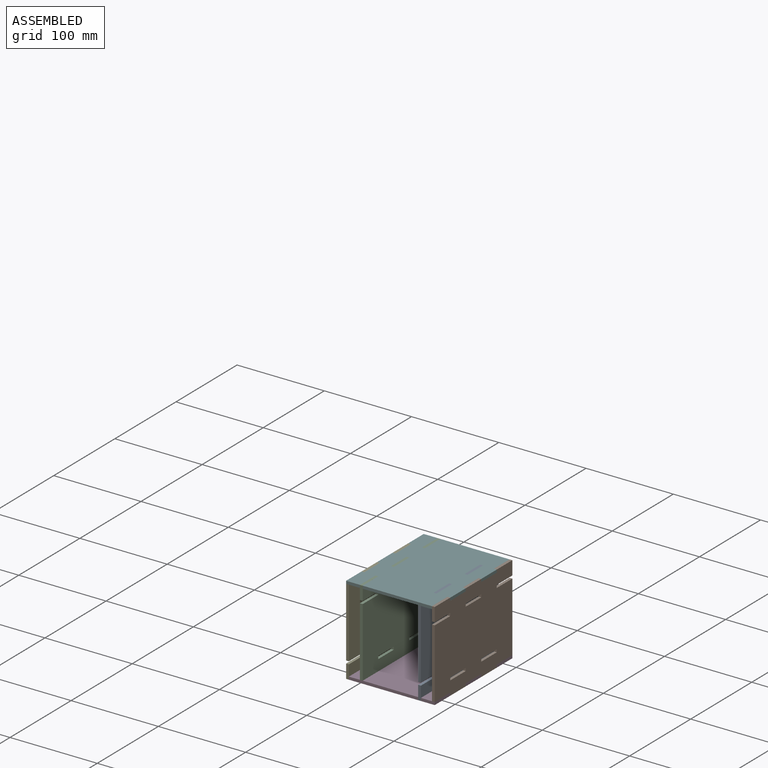
[diagram: assembled view]
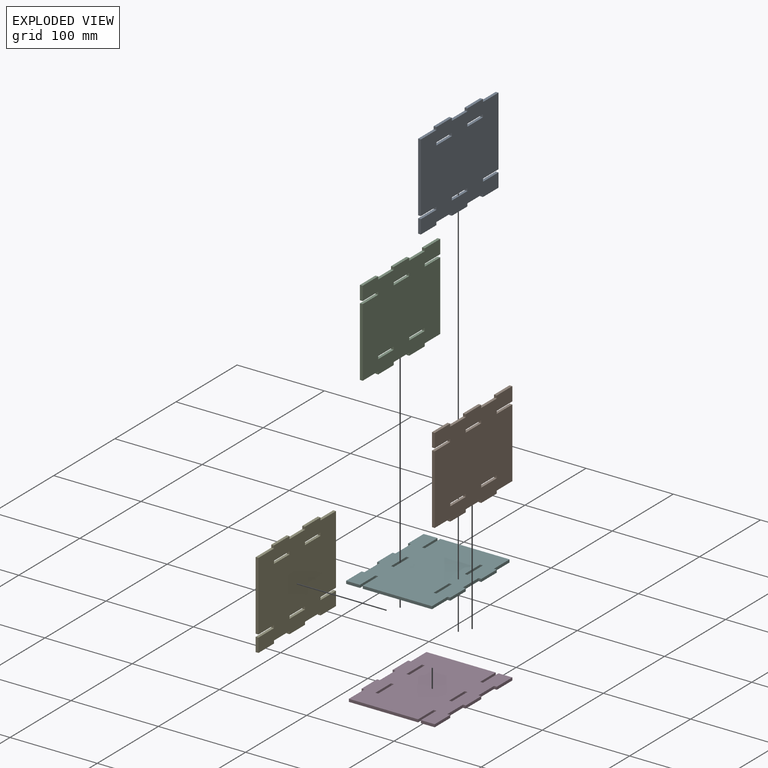
[diagram: exploded view]
GUIDED TOUR — MATED ASSEMBLY (Onshape document b6afd63ae048976123e517c2, AutoMate assembly b6afd63ae048976123e517c2_30f4b4c88ab1d7d391c8418f_69f8c4b8301abefe9bf8a802_default)

This assembly has 6 components, labeled P0..P5 below (a component is one placed occurrence of a part; the same part can appear more than once), held together by 5 mates. A mate is a constraint between two components; its type names the relative motion it leaves free:
  FASTENED — locks the two components together rigidly (no relative motion).
Axis/direction vectors are unit vectors and 'through' points are millimeter coordinates, both in the assembly's world frame.

MATES
  1. FASTENED "Fastened 2": P3 <-> P1, direction (0.000, 0.000, 1.000) through (17.25, 5.61, -39.02) mm
  2. FASTENED "Fastened 3": P5 <-> P1, direction (0.000, 0.000, -1.000) through (17.25, 31.01, 56.23) mm
  3. FASTENED "Fastened 5": P5 <-> P2, direction (0.000, 0.000, 1.000) through (-65.30, -45.19, 59.41) mm
  4. FASTENED "Fastened 1": P4 <-> P3, direction (-1.000, 0.000, 0.000) through (-84.35, -19.79, -39.02) mm
  5. FASTENED "Fastened 4": P3 <-> P0, direction (0.000, 0.000, -1.000) through (1.37, -45.19, -42.19) mm

ASSEMBLY ORDER
  1. P5 — the base component [order verified]
  2. P1 [order verified]
  3. P2 [order verified]
  4. P0 [order verified]
  5. P4 [order verified]
  6. P3 [order verified]
Order-tag legend:
  [order verified] — this step's position reverses a verified removal order: the component was checked to insert without passing through the ones already placed.

Of the 6 components, 6 carry the full construction recipe — the FeatureScript program that regenerates the part's solid from scratch; the rest are supplied as boundary geometry only.
Each toured component is shown spotlighted twice — in the assembled view, then in the exploded view, where a leader line traces a displaced component back to its assembled socket (saturated green if recipe-attached, orange if geometry-only; every other component desaturated gray) — followed by its recipe or geometry summary and the mates that hold it.
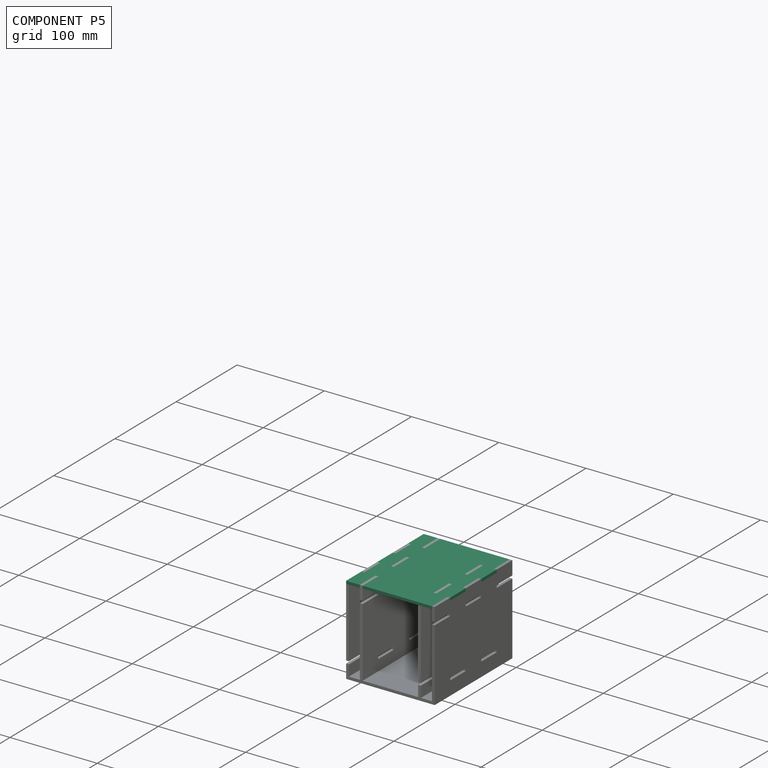
[diagram: component P5 — assembled]
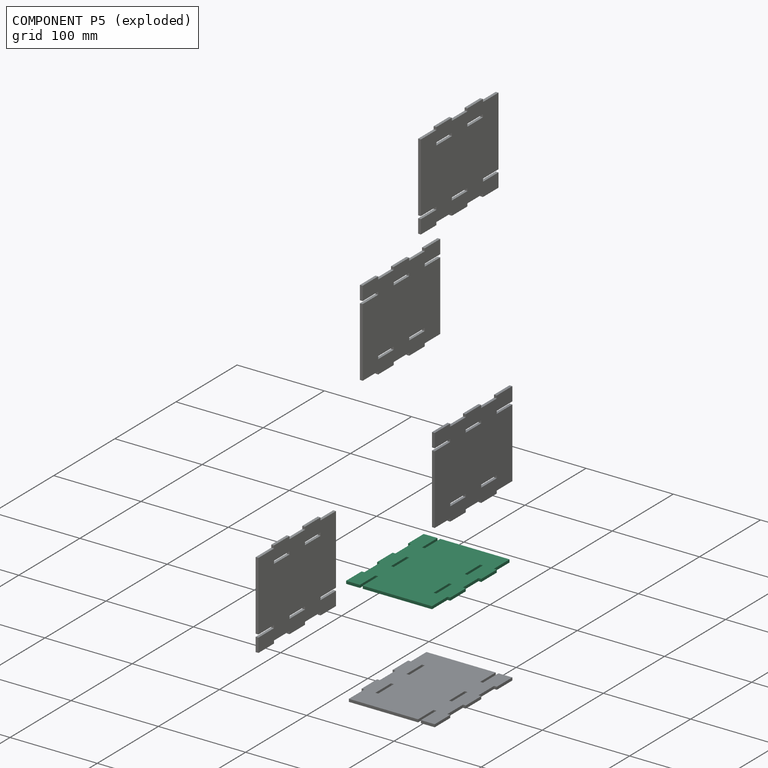
[diagram: component P5 — exploded]
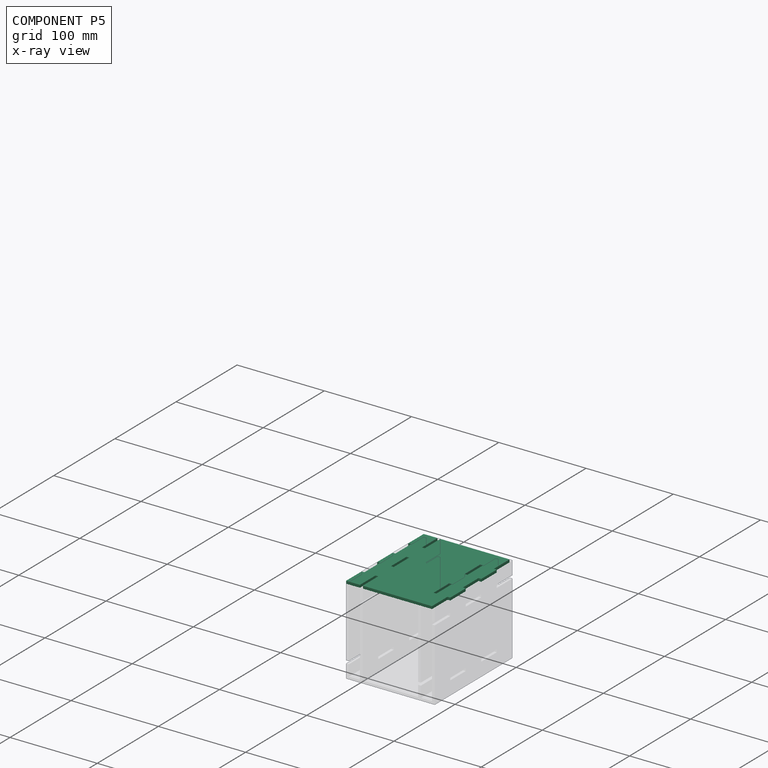
[diagram: component P5 — x-ray view]
COMPONENT P5 — same part as P0 (CADFS 00802393); its construction recipe is shown at P0.
Held by: FASTENED mate "Fastened 3" to P1; FASTENED mate "Fastened 5" to P2.
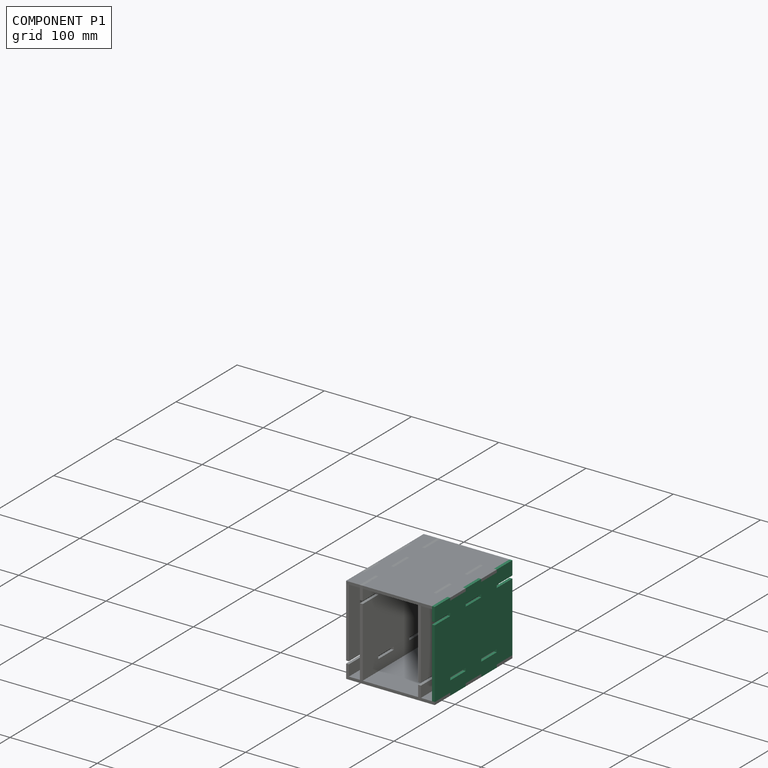
[diagram: component P1 — assembled]
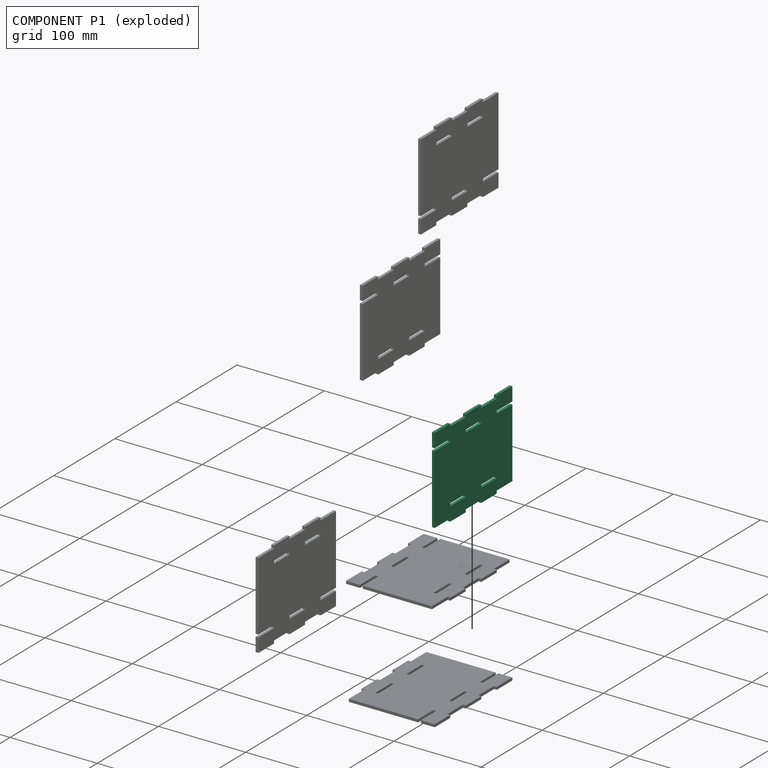
[diagram: component P1 — exploded]
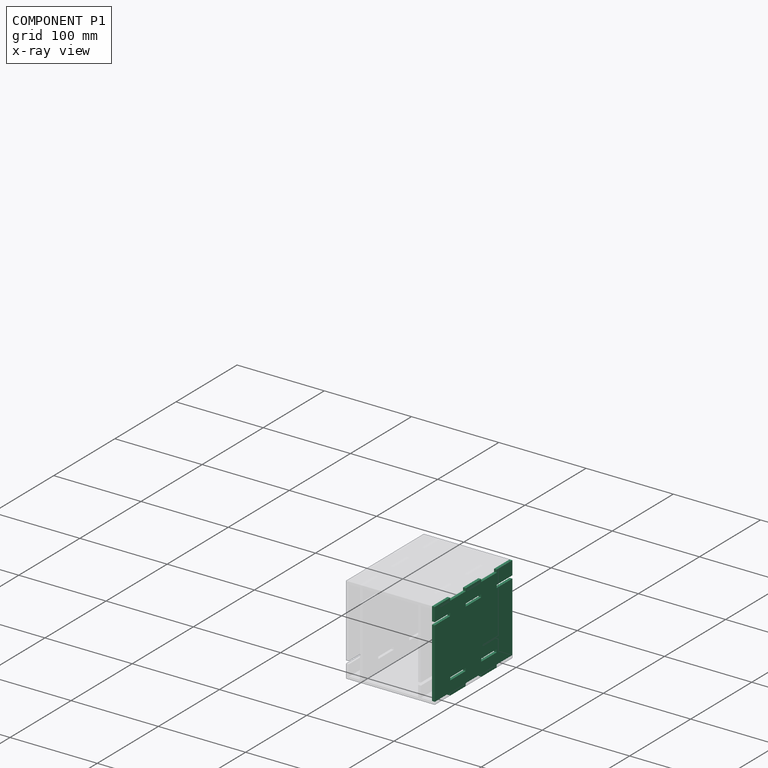
[diagram: component P1 — x-ray view]
COMPONENT P1 — same part as P0 (CADFS 00802393); its construction recipe is shown at P0.
Held by: FASTENED mate "Fastened 2" to P3; FASTENED mate "Fastened 3" to P5.
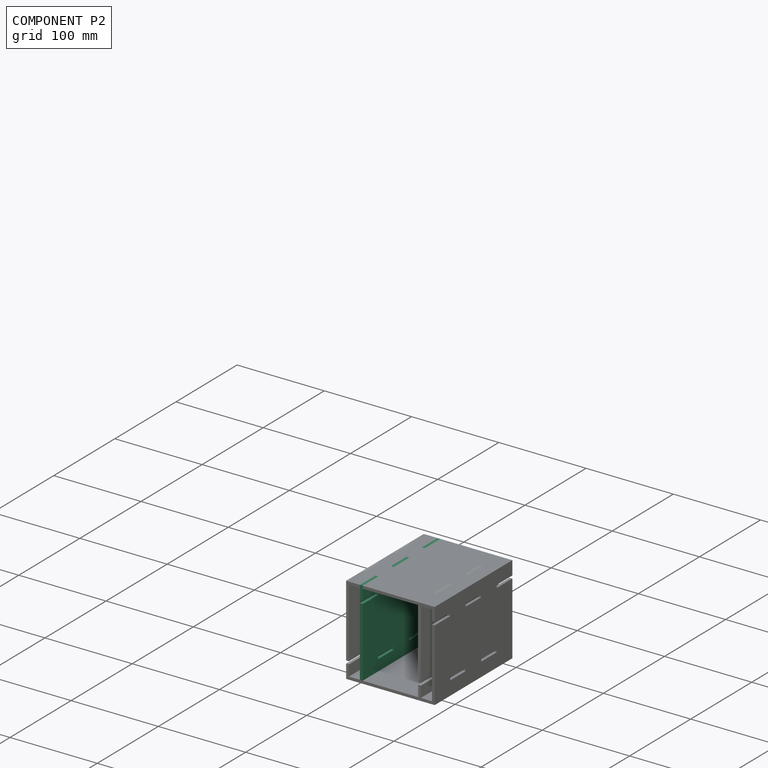
[diagram: component P2 — assembled]
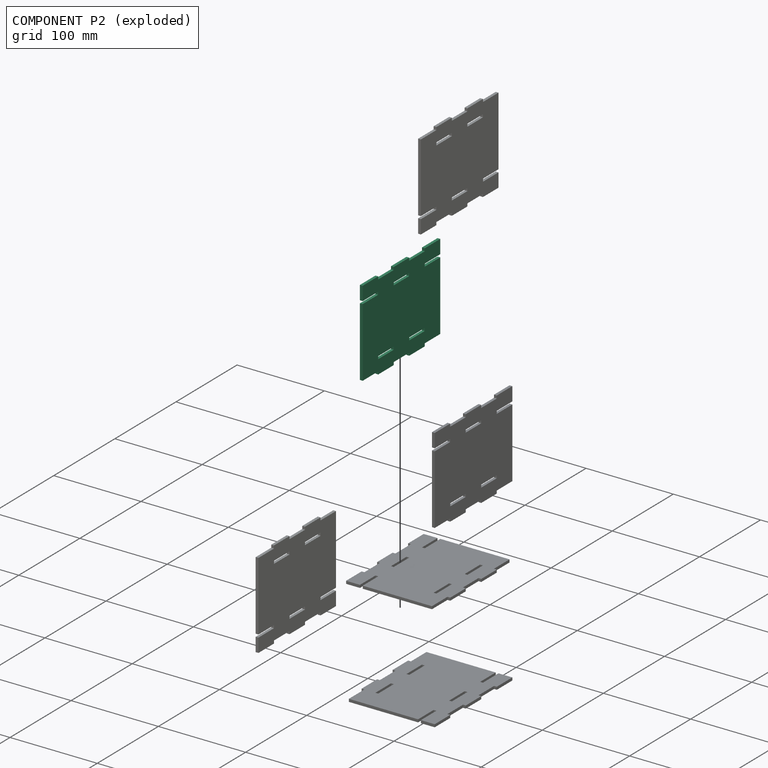
[diagram: component P2 — exploded]
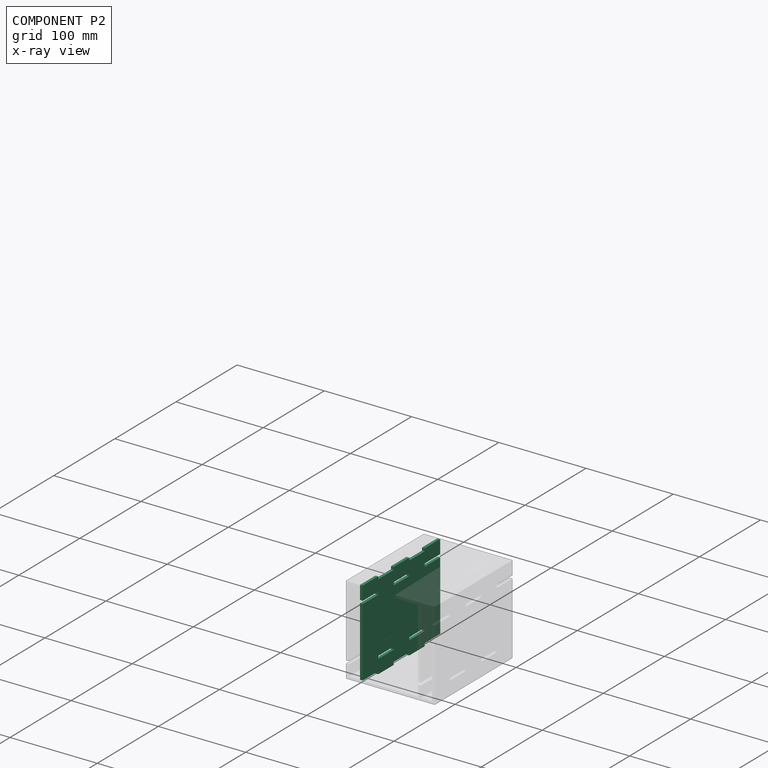
[diagram: component P2 — x-ray view]
COMPONENT P2 — same part as P0 (CADFS 00802393); its construction recipe is shown at P0.
Held by: FASTENED mate "Fastened 5" to P5.
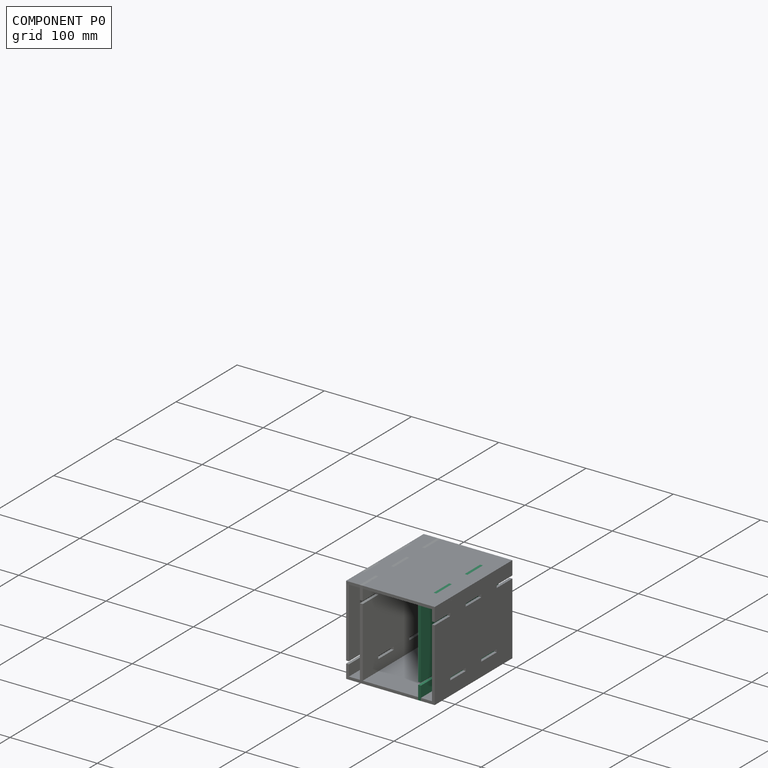
[diagram: component P0 — assembled]
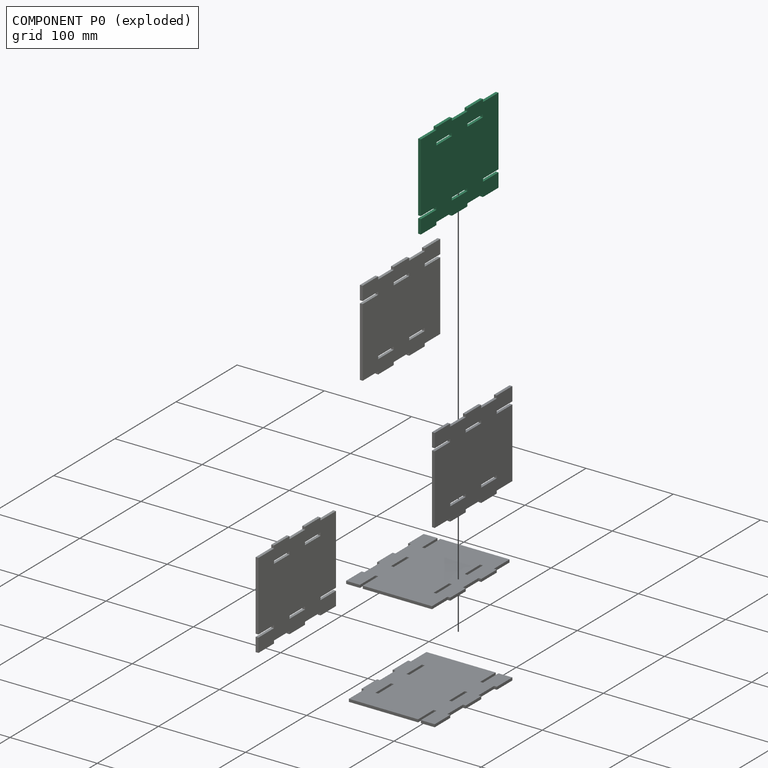
[diagram: component P0 — exploded]
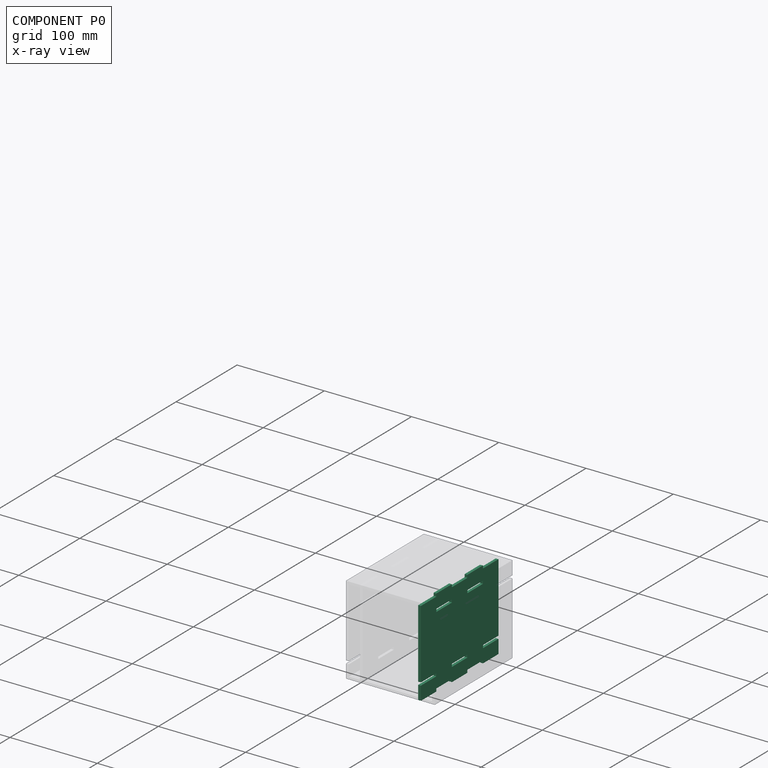
[diagram: component P0 — x-ray view]
COMPONENT P0 — recipe-attached (CADFS 00802393, mesh-verified: the recipe's output STEP matches this component's geometry to below the mesh-comparison resolution (tessellation chordal tolerance ~0.244 mm)).
Held by: FASTENED mate "Fastened 4" to P3.
Construction recipe (FeatureScript — the CAD program that rebuilds this solid; sketch coordinates are in the units given by the * unit suffixes, e.g. mm):

FeatureScript 1549;
import(path : "onshape/std/geometry.fs", version : "1549.0");
import(path : "onshape/std/common.fs", version : "1549.0");
const mm = millimeter;
const VERTEX = EntityType.VERTEX;
const EDGE = EntityType.EDGE;
const FACE = EntityType.FACE;
const BODY = EntityType.BODY;
function v(x, y){return vector(x, y);}
function OD(order){return orderDisambiguation(order);}
function OSD(set){return originalSetDisambiguation(set);}
function TD(topology){return topologyDisambiguation(topology);}
function TDD(query){return trueDependencyDisambiguation(query);}
function sQuery(a, b, c) {return sketchEntityQuery(a, b, c);}

annotation { "Feature Type Name" : "Feature", "Feature Type Description" : "" }
export const myFeature = defineFeature(function(context is Context, id is Id, definition is map)
    precondition{}
    {
        {
            var Q0;
            Q0=qCreatedBy(makeId("Right.planeOp"),FACE);
            var sketch = newSketch(context, id + "F0", { "sketchPlane" : qUnion([Q0])});
            skLineSegment(sketch, "E0.bottom", {"start": v(0, 0) * mm, "end": v(127, 0) * mm});
            skLineSegment(sketch, "E0.top", {"start": v(0, 101.6) * mm, "end": v(127, 101.6) * mm});
            skLineSegment(sketch, "E0.left", {"start": v(0, 0) * mm, "end": v(0, 101.6) * mm});
            skLineSegment(sketch, "E0.right", {"start": v(127, 0) * mm, "end": v(127, 101.6) * mm});
            skLineSegment(sketch, "E1", {"start": v(0, 0) * mm, "end": v(25.4, 0) * mm});
            skLineSegment(sketch, "E2.bottom", {"start": v(25.4, 0) * mm, "end": v(50.8, 0) * mm});
            skLineSegment(sketch, "E2.top", {"start": v(25.4, 3.18) * mm, "end": v(50.8, 3.18) * mm});
            skLineSegment(sketch, "E2.left", {"start": v(25.4, 0) * mm, "end": v(25.4, 3.17) * mm});
            skLineSegment(sketch, "E2.right", {"start": v(50.8, 0) * mm, "end": v(50.8, 3.18) * mm});
            skLineSegment(sketch, "E3", {"start": v(63.5, 0) * mm, "end": v(63.5, 101.6) * mm, "construction": true});
            skLineSegment(sketch, "E4", {"start": v(0, 50.8) * mm, "end": v(127, 50.8) * mm, "construction": true});
            skLineSegment(sketch, "E5.MirrorCS", {"start": v(101.6, 3.18) * mm, "end": v(76.2, 3.18) * mm});
            skLineSegment(sketch, "E6.MirrorCS", {"start": v(101.6, 0) * mm, "end": v(76.2, 0) * mm});
            skLineSegment(sketch, "E7.MirrorCS", {"start": v(76.2, 0) * mm, "end": v(76.2, 3.18) * mm});
            skLineSegment(sketch, "E8.MirrorCS", {"start": v(101.6, 0) * mm, "end": v(101.6, 3.17) * mm});
            skLineSegment(sketch, "E9.MirrorCS", {"start": v(25.4, 98.42) * mm, "end": v(50.8, 98.42) * mm});
            skLineSegment(sketch, "E10.MirrorCS", {"start": v(101.6, 98.42) * mm, "end": v(76.2, 98.42) * mm});
            skLineSegment(sketch, "E11.MirrorCS", {"start": v(101.6, 101.6) * mm, "end": v(76.2, 101.6) * mm});
            skLineSegment(sketch, "E12.MirrorCS", {"start": v(25.4, 101.6) * mm, "end": v(50.8, 101.6) * mm});
            skLineSegment(sketch, "E13.MirrorCS", {"start": v(101.6, 101.6) * mm, "end": v(101.6, 98.42) * mm});
            skLineSegment(sketch, "E14.MirrorCS", {"start": v(76.2, 101.6) * mm, "end": v(76.2, 98.42) * mm});
            skLineSegment(sketch, "E15.MirrorCS", {"start": v(50.8, 101.6) * mm, "end": v(50.8, 98.42) * mm});
            skLineSegment(sketch, "E16.MirrorCS", {"start": v(25.4, 101.6) * mm, "end": v(25.4, 98.42) * mm});
            skLineSegment(sketch, "E17", {"start": v(0, 98.42) * mm, "end": v(127, 98.42) * mm});
            skLineSegment(sketch, "E18", {"start": v(25.4, 3.18) * mm, "end": v(25.4, 15.88) * mm, "construction": true});
            skLineSegment(sketch, "E19.bottom", {"start": v(25.4, 15.88) * mm, "end": v(0, 15.88) * mm});
            skLineSegment(sketch, "E19.top", {"start": v(25.4, 19.05) * mm, "end": v(0, 19.05) * mm});
            skLineSegment(sketch, "E19.left", {"start": v(25.4, 15.88) * mm, "end": v(25.4, 19.05) * mm});
            skLineSegment(sketch, "E19.right", {"start": v(0, 15.87) * mm, "end": v(0, 19.05) * mm});
            skLineSegment(sketch, "E20.1.0.1", {"start": v(76.2, 15.88) * mm, "end": v(76.2, 19.05) * mm});
            skLineSegment(sketch, "E20.1.0.2", {"start": v(76.2, 15.88) * mm, "end": v(50.8, 15.88) * mm});
            skLineSegment(sketch, "E20.1.0.3", {"start": v(76.2, 19.05) * mm, "end": v(50.8, 19.05) * mm});
            skLineSegment(sketch, "E20.1.0.4", {"start": v(50.8, 15.87) * mm, "end": v(50.8, 19.05) * mm});
            skLineSegment(sketch, "E20.1.0.5", {"start": v(76.2, 3.18) * mm, "end": v(76.2, 15.88) * mm, "construction": true});
            skLineSegment(sketch, "E20.2.0.1", {"start": v(127, 15.88) * mm, "end": v(127, 19.05) * mm});
            skLineSegment(sketch, "E20.2.0.2", {"start": v(127, 15.88) * mm, "end": v(101.6, 15.88) * mm});
            skLineSegment(sketch, "E20.2.0.3", {"start": v(127, 19.05) * mm, "end": v(101.6, 19.05) * mm});
            skLineSegment(sketch, "E20.2.0.4", {"start": v(101.6, 15.87) * mm, "end": v(101.6, 19.05) * mm});
            skLineSegment(sketch, "E20.2.0.5", {"start": v(127, 3.18) * mm, "end": v(127, 15.88) * mm, "construction": true});
            skLineSegment(sketch, "E20.direction1", {"start": v(0, 0) * mm, "end": v(50.8, 0) * mm, "construction": true});
            skLineSegment(sketch, "E21.MirrorCS", {"start": v(25.4, 85.72) * mm, "end": v(25.4, 82.55) * mm});
            skLineSegment(sketch, "E22.MirrorCS", {"start": v(50.8, 85.72) * mm, "end": v(50.8, 82.55) * mm});
            skLineSegment(sketch, "E23.MirrorCS", {"start": v(76.2, 85.72) * mm, "end": v(76.2, 82.55) * mm});
            skLineSegment(sketch, "E24.MirrorCS", {"start": v(101.6, 85.72) * mm, "end": v(101.6, 82.55) * mm});
            skLineSegment(sketch, "E25", {"start": v(25.4, 85.72) * mm, "end": v(50.8, 85.72) * mm});
            skLineSegment(sketch, "E26", {"start": v(50.8, 82.55) * mm, "end": v(25.4, 82.55) * mm});
            skLineSegment(sketch, "E27", {"start": v(76.2, 85.72) * mm, "end": v(101.6, 85.72) * mm});
            skLineSegment(sketch, "E28", {"start": v(101.6, 82.55) * mm, "end": v(76.2, 82.55) * mm});
            skSolve(sketch);
        }
        {
            var Q0;
            Q0=makeQuery(id+"F0.imprint","IMPRINT",FACE,{"disambiguationData":[TD([[makeQuery(id+"F0.imprint","IMPRINT",EDGE,{"derivedFrom":sQuery(id+"F0.wireOp",EDGE,"E2.top")}),1.0]])]});
            var Q1;
            Q1=makeQuery(id+"F0.imprint","IMPRINT",FACE,{"disambiguationData":[TD([[makeQuery(id+"F0.imprint","IMPRINT",EDGE,{"derivedFrom":sQuery(id+"F0.wireOp",EDGE,"E10.MirrorCS")}),-1.0]])]});
            var Q2;
            Q2=makeQuery(id+"F0.imprint","IMPRINT",FACE,{"disambiguationData":[TD([[makeQuery(id+"F0.imprint","IMPRINT",EDGE,{"derivedFrom":sQuery(id+"F0.wireOp",EDGE,"E9.MirrorCS")}),1.0]])]});
            extrude(context, id + "F1", {"entities" : qUnion([Q0, Q1, Q2]), "depth" : 3.17 * mm, "offsetDistance" : 25.4 * mm});
        }
    });
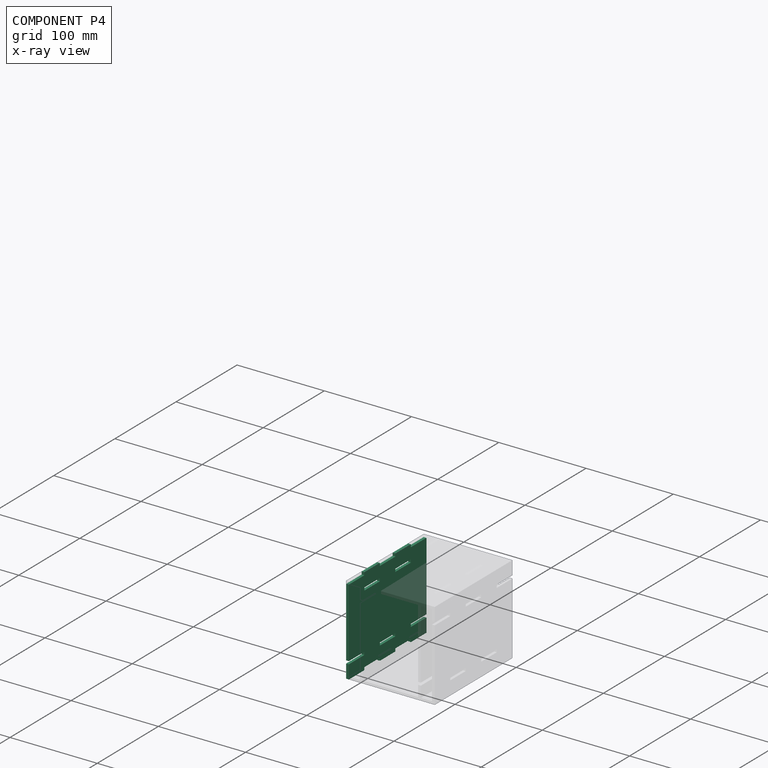
[diagram: component P4 — x-ray view]
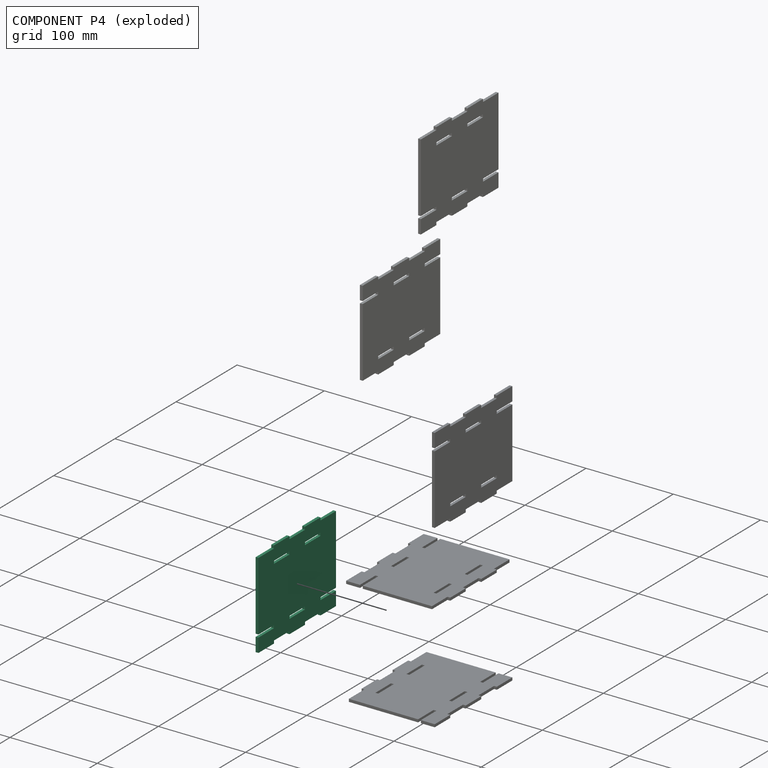
[diagram: component P4 — exploded]
COMPONENT P4 — same part as P0 (CADFS 00802393); its construction recipe is shown at P0.
Held by: FASTENED mate "Fastened 1" to P3.
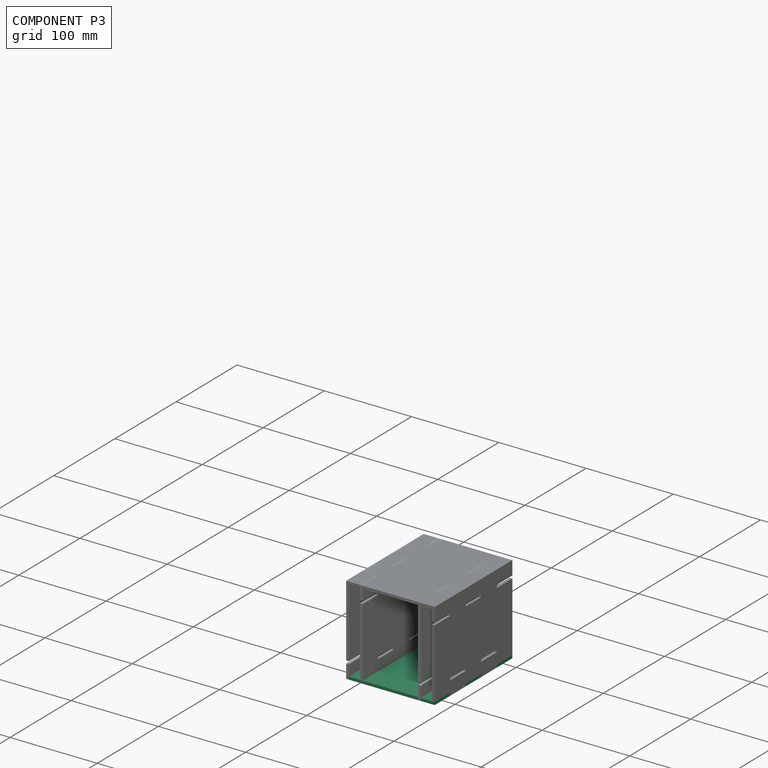
[diagram: component P3 — assembled]
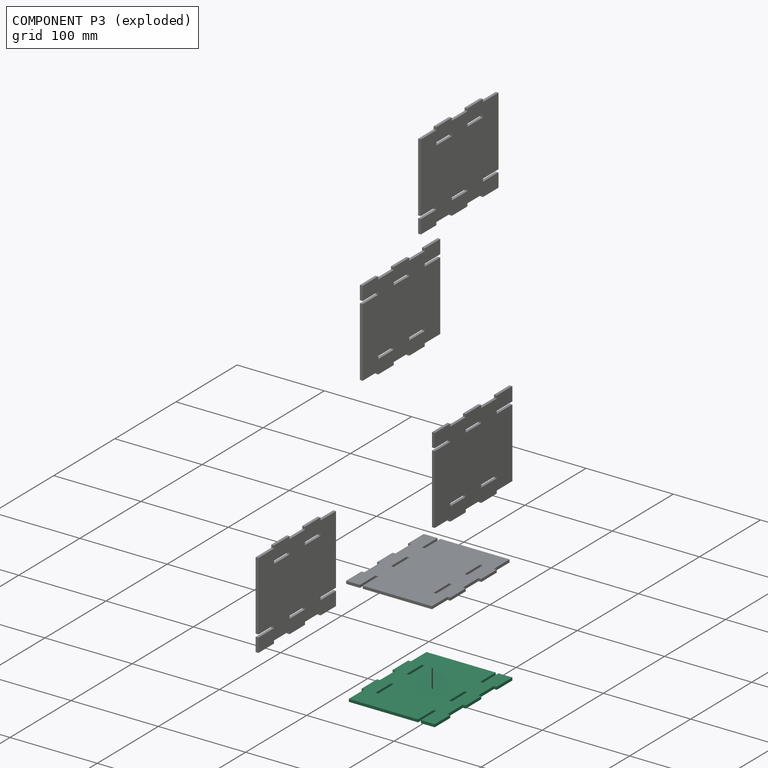
[diagram: component P3 — exploded]
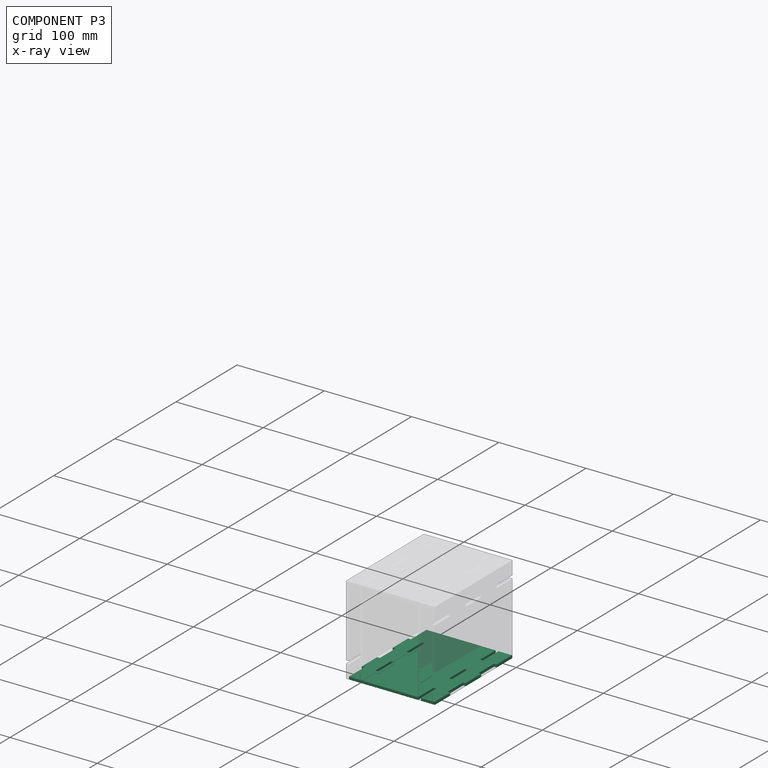
[diagram: component P3 — x-ray view]
COMPONENT P3 — same part as P0 (CADFS 00802393); its construction recipe is shown at P0.
Held by: FASTENED mate "Fastened 2" to P1; FASTENED mate "Fastened 1" to P4; FASTENED mate "Fastened 4" to P0.
PROVENANCE & LICENSES
Assembly (occurrences, transforms, mates, per-part STEP geometry): AutoMate dataset, Zenodo record 7776208, CC0.
Construction recipes: CADFS (HuggingFace VladPyatov/CADFS, CC-BY-4.0, layered over the ABC dataset), FeatureScript reconstruction programs keyed by ABC model id.
Join: ABC meta listings map ABC model id -> Onshape documentId; within a shared document, parts are matched by geometric signature (bounding-box dims + volume at 0.1% relative tolerance, exact B-rep face/solid counts).
Verification: 6 of this assembly's 6 components carry a recipe attachment, and every attachment is mesh-verified: the CADFS STEP and the AutoMate member STEP were compared as meshes in their shared local frame (symmetric sampled-point-to-mesh distance); worst across the 6 attachments: below the mesh-comparison resolution (tessellation chordal tolerance ~0.244 mm) on a 163 mm part.
Renders: orthographic iso camera (az 35 / el 25); the floor grid conveys scale (grid pitch printed in each image; no ruler). In the exploded view each component is displaced by its stored offset vector: the offsets alone carry the explosion direction (mate normal/axis signs are not orientation cues and do not encode it), and separation distances are assigned per mate-chain, not proportionally to assembly-order depth.
